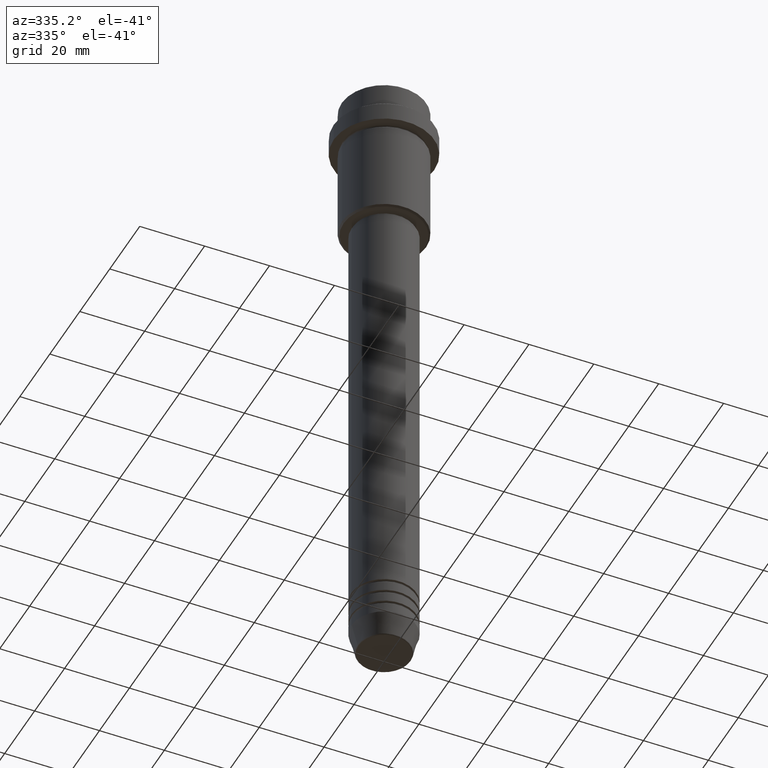
[diagram: clean part render]
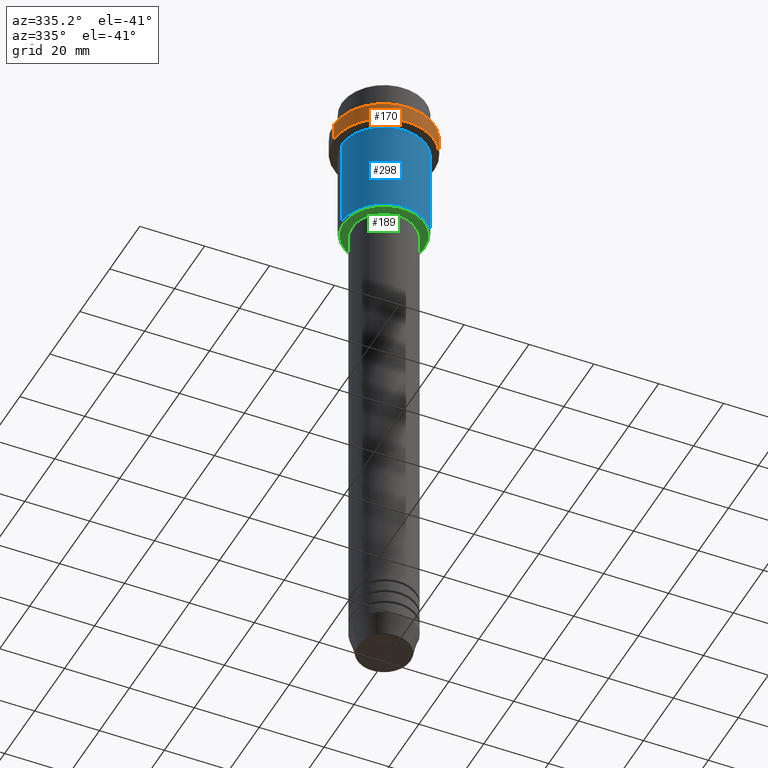
[diagram: same view with three faces highlighted in distinct colors, each labeled with its STEP entity id]
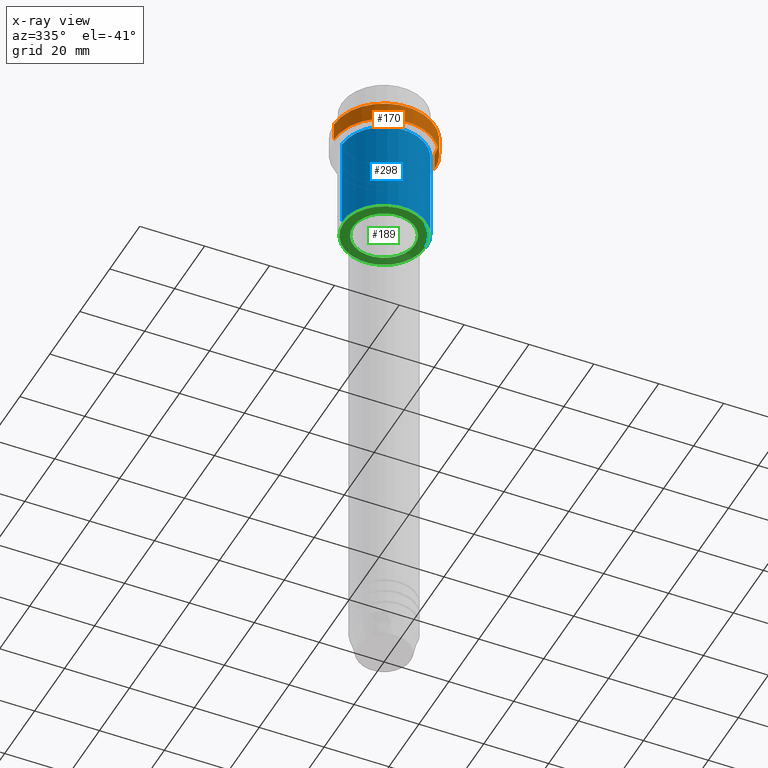
[diagram: x-ray of the same camera — body ghosted, the three highlighted faces saturated]
A machine part, auxiliary view with three faces highlighted in distinct colors.
The next image is the same camera in x-ray (body ghosted, the three faces saturated) — at least one of them is partly hidden behind the body in this view.
Their STEP definitions:

[orange] entity #170 — the highlighted cylindrical surface (partial cylindrical patch) has radius 15.5 mm, axis along (-0, -0, 1).
#12 = LINE ( 'NONE', #1109, #887 ) ;
#34 = CARTESIAN_POINT ( 'NONE',  ( 15.50000000000000000, 0.000000000000000000, -9.499999999999985789 ) ) ;
#35 = EDGE_CURVE ( 'NONE', #508, #692, #334, .T. ) ;
#38 = CARTESIAN_POINT ( 'NONE',  ( 0.000000000000000000, 0.000000000000000000, -9.499999999999985789 ) ) ;
#56 = CIRCLE ( 'NONE', #821, 15.50000000000000000 ) ;
#98 = DIRECTION ( 'NONE',  ( -0.000000000000000000, -0.000000000000000000, 1.000000000000000000 ) ) ;
#113 = ORIENTED_EDGE ( 'NONE', *, *, #556, .F. ) ;
#116 = EDGE_CURVE ( 'NONE', #692, #906, #56, .T. ) ;
#131 = CARTESIAN_POINT ( 'NONE',  ( -15.50000000000000000, 1.898202538678397557E-15, -15.00000000000000178 ) ) ;
#135 = AXIS2_PLACEMENT_3D ( 'NONE', #975, #98, #1275 ) ;
#170 = ADVANCED_FACE ( 'NONE', ( #794 ), #346, .T. ) ;
#195 = CARTESIAN_POINT ( 'NONE',  ( -15.50000000000000000, 1.898202538678397557E-15, -9.499999999999985789 ) ) ;
#238 = DIRECTION ( 'NONE',  ( 1.000000000000000000, 0.000000000000000000, 0.000000000000000000 ) ) ;
#334 = LINE ( 'NONE', #420, #708 ) ;
#346 = CYLINDRICAL_SURFACE ( 'NONE', #494, 15.50000000000000000 ) ;
#357 = DIRECTION ( 'NONE',  ( 1.000000000000000000, 0.000000000000000000, 0.000000000000000000 ) ) ;
#420 = CARTESIAN_POINT ( 'NONE',  ( 15.50000000000000000, 0.000000000000000000, 0.000000000000000000 ) ) ;
#494 = AXIS2_PLACEMENT_3D ( 'NONE', #786, #1213, #238 ) ;
#508 = VERTEX_POINT ( 'NONE', #791 ) ;
#513 = VERTEX_POINT ( 'NONE', #131 ) ;
#556 = EDGE_CURVE ( 'NONE', #513, #906, #12, .T. ) ;
#632 = ORIENTED_EDGE ( 'NONE', *, *, #35, .T. ) ;
#692 = VERTEX_POINT ( 'NONE', #34 ) ;
#708 = VECTOR ( 'NONE', #748, 1000.000000000000000 ) ;
#748 = DIRECTION ( 'NONE',  ( -0.000000000000000000, -0.000000000000000000, 1.000000000000000000 ) ) ;
#786 = CARTESIAN_POINT ( 'NONE',  ( 0.000000000000000000, 0.000000000000000000, 0.000000000000000000 ) ) ;
#791 = CARTESIAN_POINT ( 'NONE',  ( 15.50000000000000000, 0.000000000000000000, -15.00000000000000178 ) ) ;
#794 = FACE_OUTER_BOUND ( 'NONE', #1313, .T. ) ;
#808 = DIRECTION ( 'NONE',  ( 0.000000000000000000, 0.000000000000000000, -1.000000000000000000 ) ) ;
#821 = AXIS2_PLACEMENT_3D ( 'NONE', #38, #808, #357 ) ;
#850 = EDGE_CURVE ( 'NONE', #513, #508, #1344, .T. ) ;
#887 = VECTOR ( 'NONE', #1098, 1000.000000000000000 ) ;
#906 = VERTEX_POINT ( 'NONE', #195 ) ;
#943 = ORIENTED_EDGE ( 'NONE', *, *, #116, .T. ) ;
#975 = CARTESIAN_POINT ( 'NONE',  ( 0.000000000000000000, 0.000000000000000000, -15.00000000000000178 ) ) ;
#1098 = DIRECTION ( 'NONE',  ( -0.000000000000000000, -0.000000000000000000, 1.000000000000000000 ) ) ;
#1109 = CARTESIAN_POINT ( 'NONE',  ( -15.50000000000000000, 1.898202538678397557E-15, 0.000000000000000000 ) ) ;
#1120 = ORIENTED_EDGE ( 'NONE', *, *, #850, .T. ) ;
#1213 = DIRECTION ( 'NONE',  ( -0.000000000000000000, -0.000000000000000000, 1.000000000000000000 ) ) ;
#1275 = DIRECTION ( 'NONE',  ( 1.000000000000000000, 0.000000000000000000, 0.000000000000000000 ) ) ;
#1313 = EDGE_LOOP ( 'NONE', ( #113, #1120, #632, #943 ) ) ;
#1344 = CIRCLE ( 'NONE', #135, 15.50000000000000000 ) ;

[blue] entity #298 — the highlighted cylindrical surface (partial cylindrical patch) has radius 13 mm, axis along (-0, -0, 1).
#152 = EDGE_CURVE ( 'NONE', #1151, #316, #495, .T. ) ;
#156 = CYLINDRICAL_SURFACE ( 'NONE', #1224, 13.00000000000000000 ) ;
#216 = EDGE_CURVE ( 'NONE', #1020, #559, #273, .T. ) ;
#262 = DIRECTION ( 'NONE',  ( 1.000000000000000000, 0.000000000000000000, 0.000000000000000000 ) ) ;
#273 = CIRCLE ( 'NONE', #1064, 13.00000000000000000 ) ;
#280 = VECTOR ( 'NONE', #1324, 1000.000000000000000 ) ;
#298 = ADVANCED_FACE ( 'NONE', ( #1038 ), #156, .T. ) ;
#316 = VERTEX_POINT ( 'NONE', #550 ) ;
#345 = EDGE_LOOP ( 'NONE', ( #1309, #623, #530, #353 ) ) ;
#353 = ORIENTED_EDGE ( 'NONE', *, *, #152, .F. ) ;
#355 = CARTESIAN_POINT ( 'NONE',  ( 13.00000000000000000, 0.000000000000000000, -44.50000000000004974 ) ) ;
#371 = DIRECTION ( 'NONE',  ( -1.000000000000000000, 0.000000000000000000, 0.000000000000000000 ) ) ;
#375 = CARTESIAN_POINT ( 'NONE',  ( -13.00000000000000000, 1.592040838891559095E-15, -16.00000000000000000 ) ) ;
#453 = VECTOR ( 'NONE', #582, 1000.000000000000000 ) ;
#488 = DIRECTION ( 'NONE',  ( 1.000000000000000000, 0.000000000000000000, 0.000000000000000000 ) ) ;
#495 = CIRCLE ( 'NONE', #1384, 13.00000000000000000 ) ;
#530 = ORIENTED_EDGE ( 'NONE', *, *, #1071, .T. ) ;
#550 = CARTESIAN_POINT ( 'NONE',  ( 13.00000000000000000, 0.000000000000000000, -16.00000000000000000 ) ) ;
#559 = VERTEX_POINT ( 'NONE', #355 ) ;
#582 = DIRECTION ( 'NONE',  ( -0.000000000000000000, -0.000000000000000000, 1.000000000000000000 ) ) ;
#623 = ORIENTED_EDGE ( 'NONE', *, *, #216, .T. ) ;
#813 = CARTESIAN_POINT ( 'NONE',  ( 0.000000000000000000, 0.000000000000000000, -44.50000000000004974 ) ) ;
#896 = CARTESIAN_POINT ( 'NONE',  ( -13.00000000000000000, 1.592040838891559095E-15, -44.50000000000004974 ) ) ;
#1019 = CARTESIAN_POINT ( 'NONE',  ( 0.000000000000000000, 0.000000000000000000, -16.00000000000000000 ) ) ;
#1020 = VERTEX_POINT ( 'NONE', #896 ) ;
#1032 = DIRECTION ( 'NONE',  ( -0.000000000000000000, -0.000000000000000000, 1.000000000000000000 ) ) ;
#1038 = FACE_OUTER_BOUND ( 'NONE', #345, .T. ) ;
#1064 = AXIS2_PLACEMENT_3D ( 'NONE', #813, #1368, #371 ) ;
#1071 = EDGE_CURVE ( 'NONE', #559, #316, #1244, .T. ) ;
#1151 = VERTEX_POINT ( 'NONE', #375 ) ;
#1201 = CARTESIAN_POINT ( 'NONE',  ( -13.00000000000000000, 1.592040838891559095E-15, 0.000000000000000000 ) ) ;
#1207 = DIRECTION ( 'NONE',  ( -0.000000000000000000, -0.000000000000000000, 1.000000000000000000 ) ) ;
#1224 = AXIS2_PLACEMENT_3D ( 'NONE', #1353, #1032, #488 ) ;
#1244 = LINE ( 'NONE', #1355, #453 ) ;
#1309 = ORIENTED_EDGE ( 'NONE', *, *, #1392, .F. ) ;
#1315 = LINE ( 'NONE', #1201, #280 ) ;
#1324 = DIRECTION ( 'NONE',  ( -0.000000000000000000, -0.000000000000000000, 1.000000000000000000 ) ) ;
#1353 = CARTESIAN_POINT ( 'NONE',  ( 0.000000000000000000, 0.000000000000000000, 0.000000000000000000 ) ) ;
#1355 = CARTESIAN_POINT ( 'NONE',  ( 13.00000000000000000, 0.000000000000000000, 0.000000000000000000 ) ) ;
#1368 = DIRECTION ( 'NONE',  ( -0.000000000000000000, -0.000000000000000000, 1.000000000000000000 ) ) ;
#1384 = AXIS2_PLACEMENT_3D ( 'NONE', #1019, #1207, #262 ) ;
#1392 = EDGE_CURVE ( 'NONE', #1020, #1151, #1315, .T. ) ;

[green] entity #189 — the highlighted planar face has unit normal (0, 0, -1).
#40 = ORIENTED_EDGE ( 'NONE', *, *, #903, .T. ) ;
#86 = CIRCLE ( 'NONE', #1253, 12.50000000000001066 ) ;
#112 = ORIENTED_EDGE ( 'NONE', *, *, #625, .T. ) ;
#174 = DIRECTION ( 'NONE',  ( 1.000000000000000000, 0.000000000000000000, 0.000000000000000000 ) ) ;
#189 = ADVANCED_FACE ( 'NONE', ( #1009, #464 ), #1225, .T. ) ;
#254 = DIRECTION ( 'NONE',  ( -1.000000000000000000, 0.000000000000000000, -0.000000000000000000 ) ) ;
#266 = CARTESIAN_POINT ( 'NONE',  ( 0.000000000000000000, 0.000000000000000000, -45.00000000000002132 ) ) ;
#308 = DIRECTION ( 'NONE',  ( 0.000000000000000000, 0.000000000000000000, -1.000000000000000000 ) ) ;
#369 = CARTESIAN_POINT ( 'NONE',  ( -9.499999999999996447, 1.163414459189985091E-15, -45.00000000000002132 ) ) ;
#370 = CARTESIAN_POINT ( 'NONE',  ( 0.000000000000000000, 0.000000000000000000, -45.00000000000002132 ) ) ;
#379 = DIRECTION ( 'NONE',  ( 1.000000000000000000, 0.000000000000000000, 0.000000000000000000 ) ) ;
#416 = VERTEX_POINT ( 'NONE', #1307 ) ;
#464 = FACE_BOUND ( 'NONE', #1298, .T. ) ;
#499 = CIRCLE ( 'NONE', #869, 12.50000000000001066 ) ;
#588 = CARTESIAN_POINT ( 'NONE',  ( 0.000000000000000000, 0.000000000000000000, -45.00000000000002132 ) ) ;
#595 = AXIS2_PLACEMENT_3D ( 'NONE', #588, #1362, #379 ) ;
#625 = EDGE_CURVE ( 'NONE', #1157, #992, #1251, .T. ) ;
#637 = AXIS2_PLACEMENT_3D ( 'NONE', #266, #1131, #174 ) ;
#658 = ORIENTED_EDGE ( 'NONE', *, *, #1169, .T. ) ;
#705 = DIRECTION ( 'NONE',  ( -1.000000000000000000, 0.000000000000000000, 0.000000000000000000 ) ) ;
#736 = EDGE_CURVE ( 'NONE', #416, #1263, #86, .T. ) ;
#746 = DIRECTION ( 'NONE',  ( -1.000000000000000000, 0.000000000000000000, 0.000000000000000000 ) ) ;
#789 = CARTESIAN_POINT ( 'NONE',  ( 9.499999999999996447, 0.000000000000000000, -45.00000000000002132 ) ) ;
#812 = DIRECTION ( 'NONE',  ( 0.000000000000000000, 0.000000000000000000, -1.000000000000000000 ) ) ;
#869 = AXIS2_PLACEMENT_3D ( 'NONE', #1171, #308, #746 ) ;
#898 = CARTESIAN_POINT ( 'NONE',  ( 0.000000000000000000, 13.00000000000000000, -45.00000000000002132 ) ) ;
#903 = EDGE_CURVE ( 'NONE', #1263, #416, #499, .T. ) ;
#907 = AXIS2_PLACEMENT_3D ( 'NONE', #898, #1334, #254 ) ;
#981 = CIRCLE ( 'NONE', #595, 9.499999999999996447 ) ;
#992 = VERTEX_POINT ( 'NONE', #789 ) ;
#1009 = FACE_OUTER_BOUND ( 'NONE', #1060, .T. ) ;
#1049 = CARTESIAN_POINT ( 'NONE',  ( 12.50000000000001066, 0.000000000000000000, -45.00000000000002132 ) ) ;
#1060 = EDGE_LOOP ( 'NONE', ( #40, #1128 ) ) ;
#1128 = ORIENTED_EDGE ( 'NONE', *, *, #736, .T. ) ;
#1131 = DIRECTION ( 'NONE',  ( -0.000000000000000000, -0.000000000000000000, 1.000000000000000000 ) ) ;
#1157 = VERTEX_POINT ( 'NONE', #369 ) ;
#1169 = EDGE_CURVE ( 'NONE', #992, #1157, #981, .T. ) ;
#1171 = CARTESIAN_POINT ( 'NONE',  ( 0.000000000000000000, 0.000000000000000000, -45.00000000000002132 ) ) ;
#1225 = PLANE ( 'NONE',  #907 ) ;
#1251 = CIRCLE ( 'NONE', #637, 9.499999999999996447 ) ;
#1253 = AXIS2_PLACEMENT_3D ( 'NONE', #370, #812, #705 ) ;
#1263 = VERTEX_POINT ( 'NONE', #1049 ) ;
#1298 = EDGE_LOOP ( 'NONE', ( #658, #112 ) ) ;
#1307 = CARTESIAN_POINT ( 'NONE',  ( -12.50000000000001066, 1.561424668912876097E-15, -45.00000000000002132 ) ) ;
#1334 = DIRECTION ( 'NONE',  ( 0.000000000000000000, 0.000000000000000000, -1.000000000000000000 ) ) ;
#1362 = DIRECTION ( 'NONE',  ( -0.000000000000000000, -0.000000000000000000, 1.000000000000000000 ) ) ;